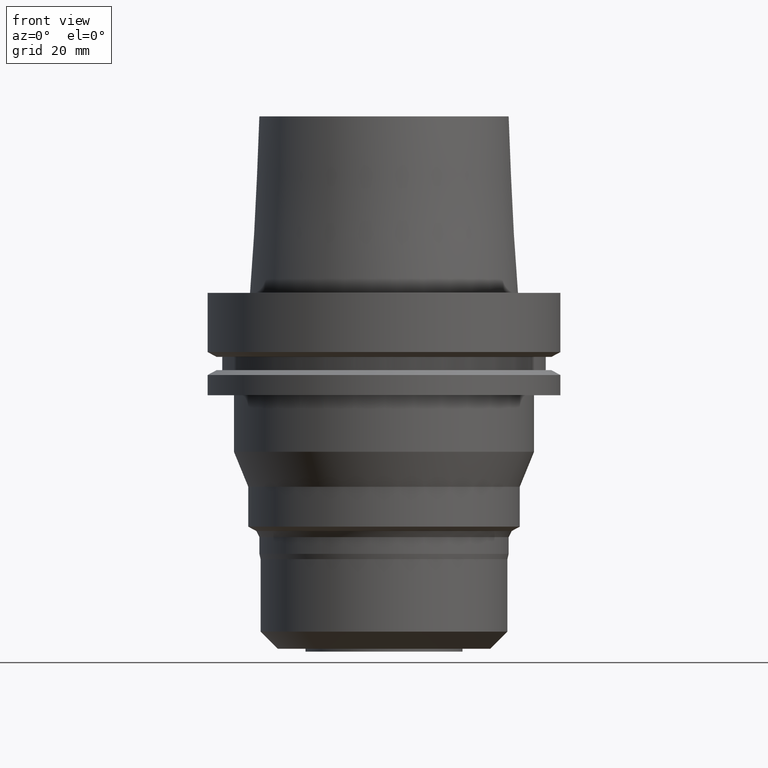
[diagram: clean part render]
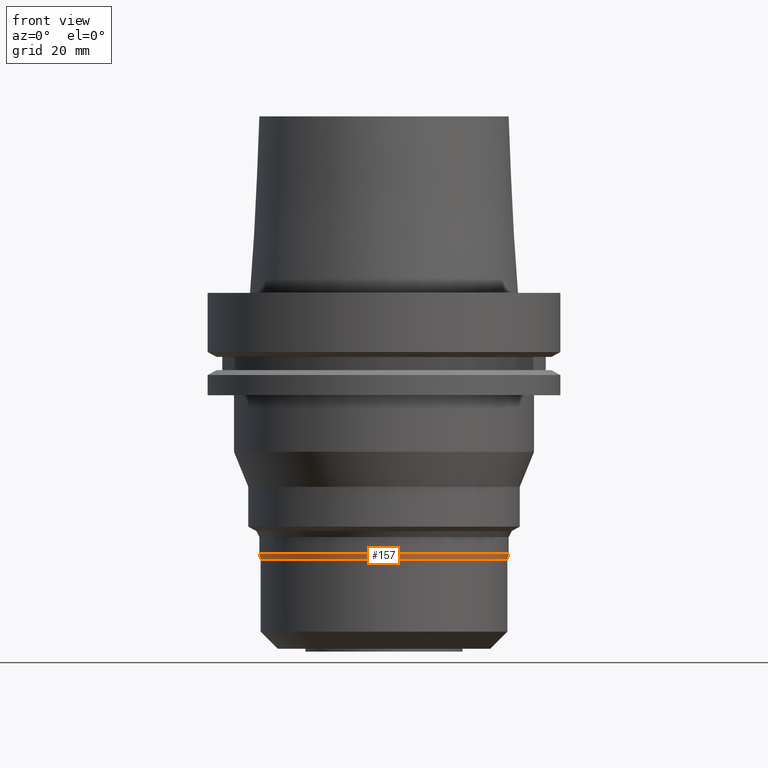
[diagram: same view with one face highlighted and labeled with its STEP entity id]
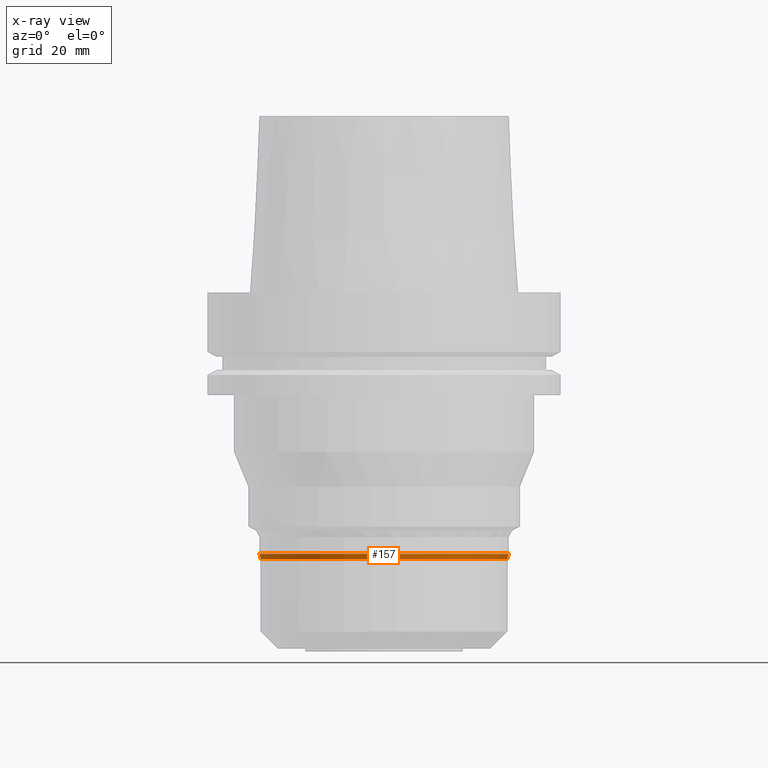
[diagram: x-ray of the same camera — body ghosted, the highlighted face saturated]
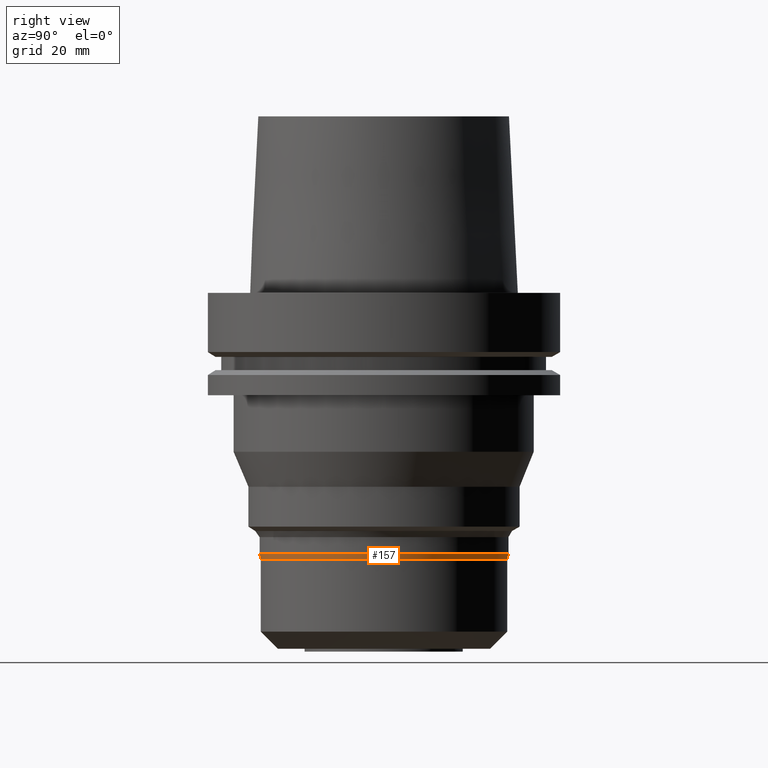
[diagram: same view with one face highlighted and labeled with its STEP entity id]
A machine part, front view. The second image highlights one B-rep face of the part: STEP entity #157.
The next image is the same camera in x-ray: the body ghosted, the highlighted face saturated — about 0% of this face is hidden behind the body in this view.
A second angle (right view) of the same face is appended — the face is thin or edge-on in the first view.
In plain terms, the highlighted conical surface has half-angle 13.134 deg.
Its self-contained STEP definition (entity closure, byte-faithful):
#124=EDGE_CURVE('Unnamed[1]',#287,#287,#288,.T.);
#131=EDGE_CURVE('Unnamed[1]',#298,#298,#299,.T.);
#157=ADVANCED_FACE('Unnamed[1]',(#339,#340),#341,.T.);
#287=VERTEX_POINT('',#498);
#288=CIRCLE('',#499,35.3500001444791);
#298=VERTEX_POINT('',#512);
#299=CIRCLE('',#513,35.0000001444792);
#339=FACE_BOUND('',#562,.T.);
#340=FACE_BOUND('',#563,.T.);
#341=CONICAL_SURFACE('',#564,35.1750001444791,0.229231933276896);
#498=CARTESIAN_POINT('',(4.52506992284948E-015,35.3500001444791,-73.9000000000002));
#499=AXIS2_PLACEMENT_3D('',#712,#713,#714);
#512=CARTESIAN_POINT('',(4.61691843278555E-015,35.0000001444792,-75.4000000000005));
#513=AXIS2_PLACEMENT_3D('',#724,#725,#726);
#562=EDGE_LOOP('',(#772));
#563=EDGE_LOOP('',(#773));
#564=AXIS2_PLACEMENT_3D('',#774,#775,#776);
#712=CARTESIAN_POINT('',(4.52506992284948E-015,2.97877846974362E-014,-73.9000000000002));
#713=DIRECTION('',(6.12323399573677E-017,8.53138753389863E-016,-1.0));
#714=DIRECTION('',(-5.7066834909142E-032,1.0,8.53138753389863E-016));
#724=CARTESIAN_POINT('',(4.61691843278555E-015,3.10674928275212E-014,-75.4000000000005));
#725=DIRECTION('',(6.12323399573677E-017,8.53138753389863E-016,-1.0));
#726=DIRECTION('',(-5.7066834909142E-032,1.0,8.53138753389863E-016));
#772=ORIENTED_EDGE('',*,*,#131,.F.);
#773=ORIENTED_EDGE('',*,*,#124,.T.);
#774=CARTESIAN_POINT('',(4.57099417781752E-015,3.04276387624787E-014,-74.6500000000004));
#775=DIRECTION('',(-6.12323399573677E-017,-8.53138753389863E-016,1.0));
#776=DIRECTION('',(-5.7066834909142E-032,1.0,8.53138753389863E-016));